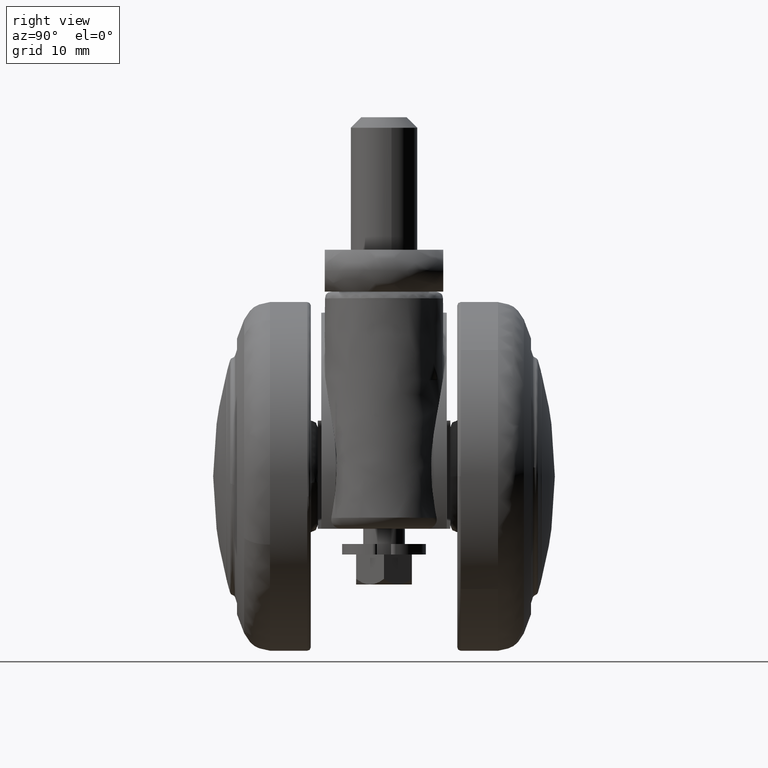
[diagram: clean part render]
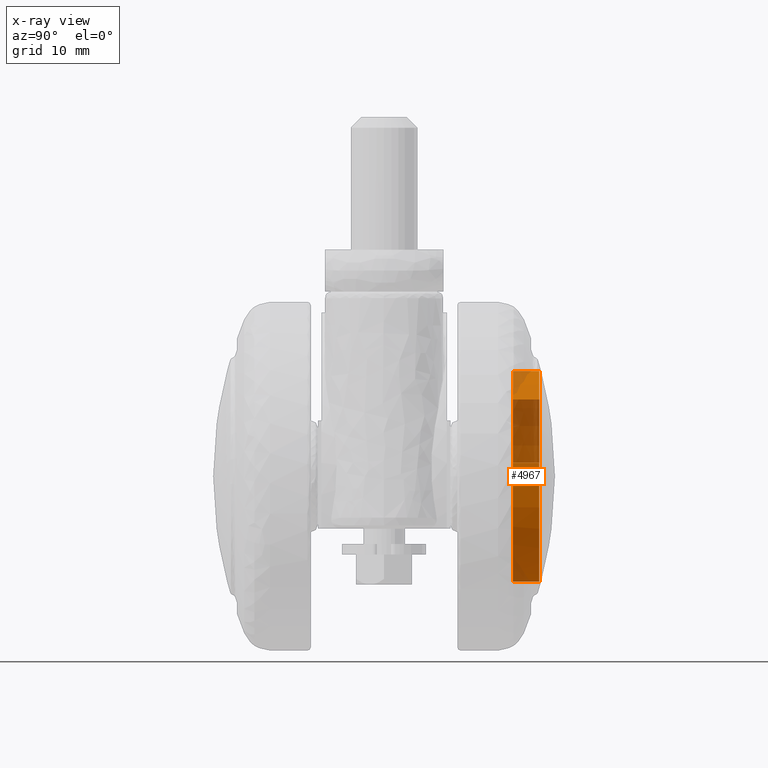
[diagram: x-ray — body ghosted, one internal face saturated and labeled with its STEP entity id]
A machine part, right view, then the same camera in x-ray: the body is ghosted and one INTERNAL B-rep face — a face not visible from any outside direction — is saturated and labeled: STEP entity #4967.
In plain terms, the highlighted face is a freeform B-spline surface patch.
Its self-contained STEP definition (entity closure, byte-faithful):
#4797=CARTESIAN_POINT('',(10.334963155952968,22.363944463164685,11.009020690556204));
#4798=CARTESIAN_POINT('',(5.120303906350870,22.363944463164689,15.904398102437895));
#4799=CARTESIAN_POINT('',(-1.970945502522779,22.363944463164689,14.970817406744541));
#4800=CARTESIAN_POINT('',(-16.941762909267315,22.363944463164696,12.999871904221756));
#4801=CARTESIAN_POINT('',(-14.970817406744530,22.363944463164689,-1.970945502522777));
#4802=CARTESIAN_POINT('',(-12.999871904221754,22.363944463164696,-16.941762909267315));
#4803=CARTESIAN_POINT('',(1.970945502522779,22.363944463164689,-14.970817406744530));
#4804=CARTESIAN_POINT('',(16.941762909267315,22.363944463164696,-12.999871904221752));
#4805=CARTESIAN_POINT('',(14.970817406744530,22.363944463164689,1.970945502522781));
#4806=CARTESIAN_POINT('',(10.334963155952968,18.403401388420875,11.009020690556204));
#4807=CARTESIAN_POINT('',(5.120303906350870,18.403401388420878,15.904398102437895));
#4808=CARTESIAN_POINT('',(-1.970945502522779,18.403401388420878,14.970817406744541));
#4809=CARTESIAN_POINT('',(-16.941762909267315,18.403401388420882,12.999871904221756));
#4810=CARTESIAN_POINT('',(-14.970817406744530,18.403401388420878,-1.970945502522777));
#4811=CARTESIAN_POINT('',(-12.999871904221754,18.403401388420882,-16.941762909267315));
#4812=CARTESIAN_POINT('',(1.970945502522779,18.403401388420878,-14.970817406744530));
#4813=CARTESIAN_POINT('',(16.941762909267315,18.403401388420882,-12.999871904221752));
#4814=CARTESIAN_POINT('',(14.970817406744530,18.403401388420878,1.970945502522781));
#4822=(BOUNDED_SURFACE()B_SPLINE_SURFACE(2,1,((#4797,#4806),(#4798,#4807),(#4799,#4808),(#4800,#4809),(#4801,#4810),(#4802,#4811),(#4803,#4812),(#4804,#4813),(#4805,#4814)),.UNSPECIFIED.,.F.,.F.,.U.)B_SPLINE_SURFACE_WITH_KNOTS((3,2,2,2,3),(2,2),(0.0,14.010359533707570,39.028858701042502,64.047357868377446,89.065857035712384),(0.0,3.960543074743811),.UNSPECIFIED.)GEOMETRIC_REPRESENTATION_ITEM()RATIONAL_B_SPLINE_SURFACE(((0.855662221768731,0.855662221768731),(0.835979797464467,0.835979797464467),(1.0,1.0),(0.707106781186548,0.707106781186548),(1.0,1.0),(0.707106781186548,0.707106781186548),(1.0,1.0),(0.707106781186548,0.707106781186548),(1.0,1.0)))REPRESENTATION_ITEM('')SURFACE());
#4823=CARTESIAN_POINT('',(10.334962133866490,22.269701913229170,11.009021650062451));
#4824=VERTEX_POINT('',#4823);
#4825=CARTESIAN_POINT('',(0.0,22.269701913229198,15.100000000000000));
#4826=VERTEX_POINT('',#4825);
#4827=CARTESIAN_POINT('',(10.334962133866490,22.269701913229170,11.009021650062452));
#4828=CARTESIAN_POINT('',(5.977164916901860,22.269701913229206,15.100000000000005));
#4829=CARTESIAN_POINT('',(0.0,22.269701913229198,15.100000000000000));
#4837=(BOUNDED_CURVE()B_SPLINE_CURVE(2,(#4827,#4828,#4829),.UNSPECIFIED.,.F.,.U.)B_SPLINE_CURVE_WITH_KNOTS((3,3),(0.379763983183900,0.500000000000000),.UNSPECIFIED.)CURVE()GEOMETRIC_REPRESENTATION_ITEM()RATIONAL_B_SPLINE_CURVE((0.853766106386114,0.859134744069696,1.0))REPRESENTATION_ITEM(''));
#4838=EDGE_CURVE('',#4824,#4826,#4837,.T.);
#4839=ORIENTED_EDGE('',*,*,#4838,.T.);
#4840=CARTESIAN_POINT('',(-14.625605733036929,22.269701915282621,-3.755217296210319));
#4841=VERTEX_POINT('',#4840);
#4842=CARTESIAN_POINT('',(0.0,22.269701913229198,15.100000000000000));
#4843=CARTESIAN_POINT('',(-15.100000000000005,22.269701913229206,15.100000000000005));
#4844=CARTESIAN_POINT('',(-15.100000000000000,22.269701913229198,1.789254E-015));
#4845=CARTESIAN_POINT('',(-15.100000000000001,22.269701913229195,-1.907573614558255));
#4846=CARTESIAN_POINT('',(-14.625605733036931,22.269701915282631,-3.755217296210319));
#4854=(BOUNDED_CURVE()B_SPLINE_CURVE(2,(#4842,#4843,#4844,#4845,#4846),.UNSPECIFIED.,.F.,.U.)B_SPLINE_CURVE_WITH_KNOTS((3,2,3),(0.500000000000000,0.750000000000000,0.792443238243645),.UNSPECIFIED.)CURVE()GEOMETRIC_REPRESENTATION_ITEM()RATIONAL_B_SPLINE_CURVE((1.0,0.707106781186547,1.0,0.950274653335811,0.917433344553349))REPRESENTATION_ITEM(''));
#4855=EDGE_CURVE('',#4826,#4841,#4854,.T.);
#4856=ORIENTED_EDGE('',*,*,#4855,.T.);
#4857=CARTESIAN_POINT('',(0.0,22.269701913229198,-15.100000000000000));
#4858=VERTEX_POINT('',#4857);
#4859=CARTESIAN_POINT('',(-14.625605733036936,22.269701915282628,-3.755217296210319));
#4860=CARTESIAN_POINT('',(-11.712760616814414,22.269701913229198,-15.099999999999996));
#4861=CARTESIAN_POINT('',(0.0,22.269701913229198,-15.100000000000000));
#4869=(BOUNDED_CURVE()B_SPLINE_CURVE(2,(#4859,#4860,#4861),.UNSPECIFIED.,.F.,.U.)B_SPLINE_CURVE_WITH_KNOTS((3,3),(0.792443238243645,1.0),.UNSPECIFIED.)CURVE()GEOMETRIC_REPRESENTATION_ITEM()RATIONAL_B_SPLINE_CURVE((0.917433344553349,0.756832127850737,1.0))REPRESENTATION_ITEM(''));
#4870=EDGE_CURVE('',#4841,#4858,#4869,.T.);
#4871=ORIENTED_EDGE('',*,*,#4870,.T.);
#4872=CARTESIAN_POINT('',(5.418835340892587,22.269701915281889,-14.094191127847440));
#4873=VERTEX_POINT('',#4872);
#4874=CARTESIAN_POINT('',(0.0,22.269701913229198,-15.100000000000000));
#4875=CARTESIAN_POINT('',(2.802763511733125,22.269701913229191,-15.099999999999996));
#4876=CARTESIAN_POINT('',(5.418835340892588,22.269701915281882,-14.094191127847443));
#4884=(BOUNDED_CURVE()B_SPLINE_CURVE(2,(#4874,#4875,#4876),.UNSPECIFIED.,.F.,.U.)B_SPLINE_CURVE_WITH_KNOTS((3,3),(0.0,0.060939058909672),.UNSPECIFIED.)CURVE()GEOMETRIC_REPRESENTATION_ITEM()RATIONAL_B_SPLINE_CURVE((1.0,0.928605451537935,0.892016635832343))REPRESENTATION_ITEM(''));
#4885=EDGE_CURVE('',#4858,#4873,#4884,.T.);
#4886=ORIENTED_EDGE('',*,*,#4885,.T.);
#4887=CARTESIAN_POINT('',(14.970820004793479,22.269701913229280,1.970925768180791));
#4888=VERTEX_POINT('',#4887);
#4889=CARTESIAN_POINT('',(5.418835340892587,22.269701915281889,-14.094191127847434));
#4890=CARTESIAN_POINT('',(15.100000000000005,22.269701913229195,-10.372045123152819));
#4891=CARTESIAN_POINT('',(15.100000000000000,22.269701913229198,1.789254E-015));
#4892=CARTESIAN_POINT('',(15.099999999999996,22.269701913229191,0.989696293443242));
#4893=CARTESIAN_POINT('',(14.970820004793479,22.269701913229280,1.970925768180792));
#4901=(BOUNDED_CURVE()B_SPLINE_CURVE(2,(#4889,#4890,#4891,#4892,#4893),.UNSPECIFIED.,.F.,.U.)B_SPLINE_CURVE_WITH_KNOTS((3,2,3),(0.060939058909672,0.250000000000000,0.272560393737736),.UNSPECIFIED.)CURVE()GEOMETRIC_REPRESENTATION_ITEM()RATIONAL_B_SPLINE_CURVE((0.892016635832343,0.778501329648613,1.0,0.973568854641822,0.951908085653403))REPRESENTATION_ITEM(''));
#4902=EDGE_CURVE('',#4873,#4888,#4901,.T.);
#4903=ORIENTED_EDGE('',*,*,#4902,.T.);
#4904=CARTESIAN_POINT('',(14.970817666133170,18.500000000000000,1.970943532268486));
#4905=VERTEX_POINT('',#4904);
#4906=CARTESIAN_POINT('',(14.970820004793479,22.269701913229280,1.970925768180791));
#4907=CARTESIAN_POINT('',(14.970817666133170,18.500000000000000,1.970943532268486));
#4908=QUASI_UNIFORM_CURVE('',1,(#4906,#4907),.UNSPECIFIED.,.F.,.U.);
#4909=EDGE_CURVE('',#4888,#4905,#4908,.T.);
#4910=ORIENTED_EDGE('',*,*,#4909,.T.);
#4911=CARTESIAN_POINT('',(0.0,18.500000000000000,-15.100000000000000));
#4912=VERTEX_POINT('',#4911);
#4913=CARTESIAN_POINT('',(0.0,18.500000000000000,-15.100000000000000));
#4914=CARTESIAN_POINT('',(15.100000000000005,18.500000000000004,-15.100000000000005));
#4915=CARTESIAN_POINT('',(15.100000000000000,18.500000000000000,1.789254E-015));
#4916=CARTESIAN_POINT('',(15.100000000000000,18.500000000000004,0.989705290613779));
#4917=CARTESIAN_POINT('',(14.970817666133170,18.500000000000000,1.970943532268486));
#4925=(BOUNDED_CURVE()B_SPLINE_CURVE(2,(#4913,#4914,#4915,#4916,#4917),.UNSPECIFIED.,.F.,.U.)B_SPLINE_CURVE_WITH_KNOTS((3,2,3),(0.0,0.250000000000000,0.272560593409775),.UNSPECIFIED.)CURVE()GEOMETRIC_REPRESENTATION_ITEM()RATIONAL_B_SPLINE_CURVE((1.0,0.707106781186547,1.0,0.973568620711478,0.951907702234059))REPRESENTATION_ITEM(''));
#4926=EDGE_CURVE('',#4912,#4905,#4925,.T.);
#4927=ORIENTED_EDGE('',*,*,#4926,.F.);
#4928=CARTESIAN_POINT('',(0.0,18.500000000000000,15.100000000000000));
#4929=VERTEX_POINT('',#4928);
#4930=CARTESIAN_POINT('',(0.0,18.500000000000000,15.100000000000000));
#4931=CARTESIAN_POINT('',(-15.100000000000005,18.500000000000004,15.100000000000005));
#4932=CARTESIAN_POINT('',(-15.100000000000000,18.500000000000000,1.789254E-015));
#4933=CARTESIAN_POINT('',(-15.100000000000005,18.500000000000004,-15.100000000000005));
#4934=CARTESIAN_POINT('',(0.0,18.500000000000000,-15.100000000000000));
#4942=(BOUNDED_CURVE()B_SPLINE_CURVE(2,(#4930,#4931,#4932,#4933,#4934),.UNSPECIFIED.,.F.,.U.)B_SPLINE_CURVE_WITH_KNOTS((3,2,3),(0.500000000000000,0.750000000000000,1.0),.UNSPECIFIED.)CURVE()GEOMETRIC_REPRESENTATION_ITEM()RATIONAL_B_SPLINE_CURVE((1.0,0.707106781186547,1.0,0.707106781186547,1.0))REPRESENTATION_ITEM(''));
#4943=EDGE_CURVE('',#4929,#4912,#4942,.T.);
#4944=ORIENTED_EDGE('',*,*,#4943,.F.);
#4945=CARTESIAN_POINT('',(10.334962146084059,18.500000000000000,11.009021638592939));
#4946=VERTEX_POINT('',#4945);
#4947=CARTESIAN_POINT('',(10.334962146084061,18.500000000000000,11.009021638592941));
#4948=CARTESIAN_POINT('',(5.977164926593547,18.500000000000004,15.100000000000003));
#4949=CARTESIAN_POINT('',(0.0,18.500000000000000,15.100000000000000));
#4957=(BOUNDED_CURVE()B_SPLINE_CURVE(2,(#4947,#4948,#4949),.UNSPECIFIED.,.F.,.U.)B_SPLINE_CURVE_WITH_KNOTS((3,3),(0.379763983016406,0.500000000000000),.UNSPECIFIED.)CURVE()GEOMETRIC_REPRESENTATION_ITEM()RATIONAL_B_SPLINE_CURVE((0.853766106371157,0.859134743873465,1.0))REPRESENTATION_ITEM(''));
#4958=EDGE_CURVE('',#4946,#4929,#4957,.T.);
#4959=ORIENTED_EDGE('',*,*,#4958,.F.);
#4960=CARTESIAN_POINT('',(10.334962133866490,22.269701913229170,11.009021650062451));
#4961=CARTESIAN_POINT('',(10.334962146084059,18.500000000000000,11.009021638592939));
#4962=QUASI_UNIFORM_CURVE('',1,(#4960,#4961),.UNSPECIFIED.,.F.,.U.);
#4963=EDGE_CURVE('',#4824,#4946,#4962,.T.);
#4964=ORIENTED_EDGE('',*,*,#4963,.F.);
#4965=EDGE_LOOP('',(#4839,#4856,#4871,#4886,#4903,#4910,#4927,#4944,#4959,#4964));
#4966=FACE_OUTER_BOUND('',#4965,.T.);
#4967=ADVANCED_FACE('',(#4966),#4822,.T.);